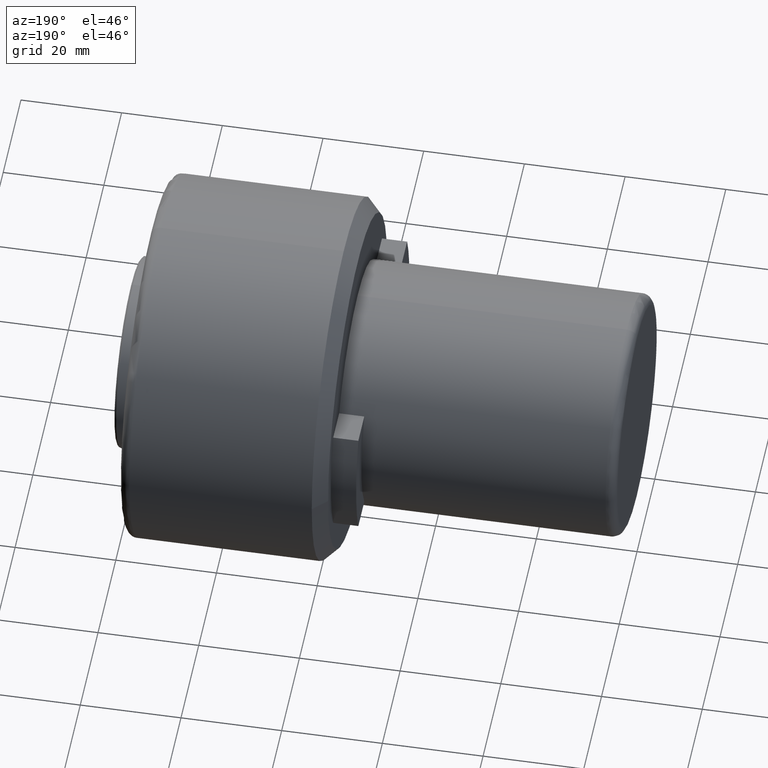
[diagram: clean part render]
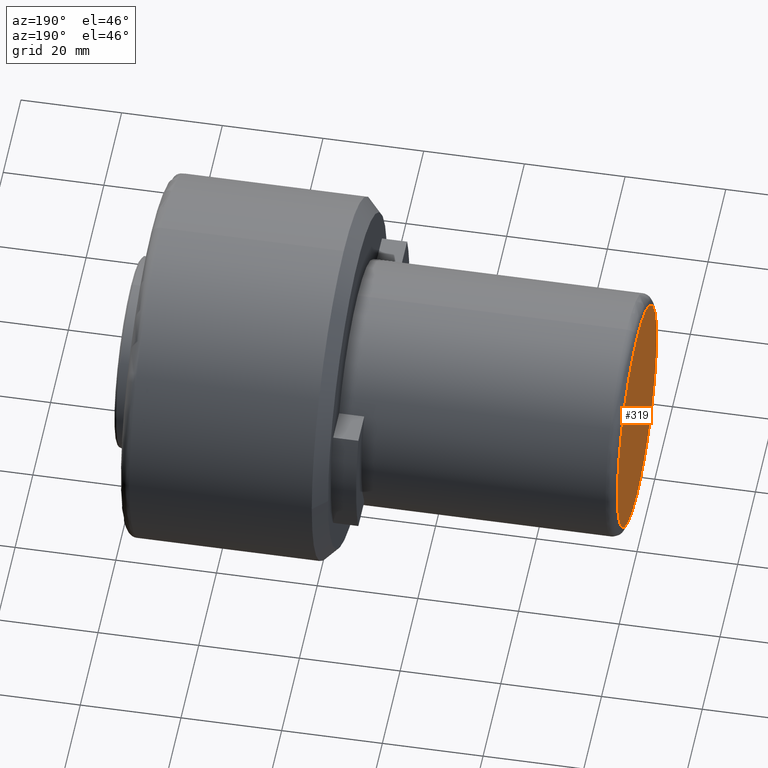
[diagram: same view with one face highlighted and labeled with its STEP entity id]
A machine part, auxiliary view. The second image highlights one B-rep face of the part: STEP entity #319.
In plain terms, the highlighted planar face has unit normal (-1, 0, 0).
Its self-contained STEP definition (entity closure, byte-faithful):
#17 = EDGE_CURVE ( 'NONE', #1244, #226, #194, .T. ) ;
#27 = EDGE_LOOP ( 'NONE', ( #924, #329 ) ) ;
#69 = PLANE ( 'NONE',  #907 ) ;
#119 = CARTESIAN_POINT ( 'NONE',  ( 0.0000000000000000000, 0.0000000000000000000, 21.99999999999999300 ) ) ;
#145 = CIRCLE ( 'NONE', #635, 22.00000000000000000 ) ;
#159 = CARTESIAN_POINT ( 'NONE',  ( 0.0000000000000000000, 21.60620000000000100, -21.60620000000000100 ) ) ;
#194 = CIRCLE ( 'NONE', #1390, 22.00000000000000000 ) ;
#226 = VERTEX_POINT ( 'NONE', #119 ) ;
#262 = CARTESIAN_POINT ( 'NONE',  ( 0.0000000000000000000, 2.816687638038912400E-015, -22.00000000000000700 ) ) ;
#319 = ADVANCED_FACE ( 'NONE', ( #1331 ), #69, .T. ) ;
#329 = ORIENTED_EDGE ( 'NONE', *, *, #17, .T. ) ;
#335 = EDGE_CURVE ( 'NONE', #226, #1244, #145, .T. ) ;
#379 = CARTESIAN_POINT ( 'NONE',  ( 0.0000000000000000000, 0.0000000000000000000, -7.733975497063264400E-015 ) ) ;
#458 = DIRECTION ( 'NONE',  ( 0.0000000000000000000, 0.0000000000000000000, 1.000000000000000000 ) ) ;
#635 = AXIS2_PLACEMENT_3D ( 'NONE', #1186, #980, #1012 ) ;
#907 = AXIS2_PLACEMENT_3D ( 'NONE', #159, #1133, #1020 ) ;
#924 = ORIENTED_EDGE ( 'NONE', *, *, #335, .T. ) ;
#980 = DIRECTION ( 'NONE',  ( -1.000000000000000000, 0.0000000000000000000, 0.0000000000000000000 ) ) ;
#1012 = DIRECTION ( 'NONE',  ( 0.0000000000000000000, 0.0000000000000000000, 1.000000000000000000 ) ) ;
#1020 = DIRECTION ( 'NONE',  ( 0.0000000000000000000, 0.0000000000000000000, 1.000000000000000000 ) ) ;
#1059 = DIRECTION ( 'NONE',  ( -1.000000000000000000, 0.0000000000000000000, 0.0000000000000000000 ) ) ;
#1133 = DIRECTION ( 'NONE',  ( -1.000000000000000000, 0.0000000000000000000, 0.0000000000000000000 ) ) ;
#1186 = CARTESIAN_POINT ( 'NONE',  ( 0.0000000000000000000, 0.0000000000000000000, -7.733975497063264400E-015 ) ) ;
#1244 = VERTEX_POINT ( 'NONE', #262 ) ;
#1331 = FACE_OUTER_BOUND ( 'NONE', #27, .T. ) ;
#1390 = AXIS2_PLACEMENT_3D ( 'NONE', #379, #1059, #458 ) ;